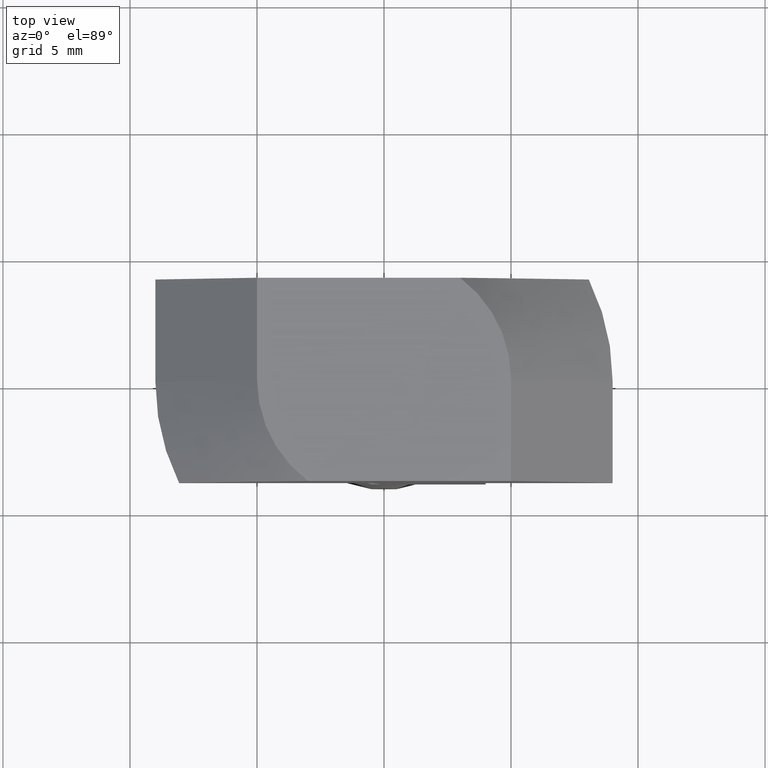
[diagram: clean part render]
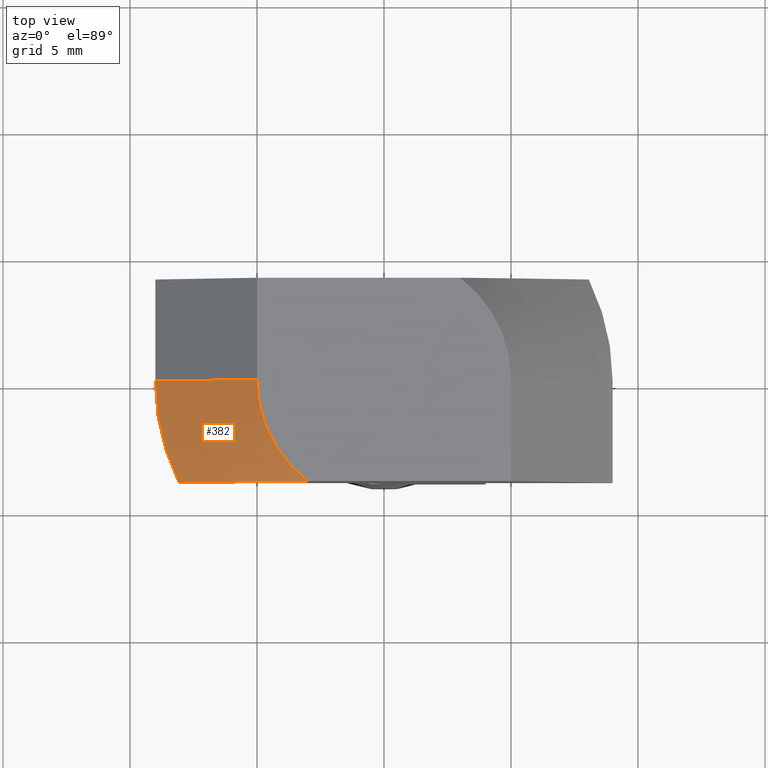
[diagram: same view with one face highlighted and labeled with its STEP entity id]
A machine part, top view. The second image highlights one B-rep face of the part: STEP entity #382.
In plain terms, the highlighted conical surface has half-angle 45 deg.
Its self-contained STEP definition (entity closure, byte-faithful):
#16=(
BOUNDED_CURVE()
B_SPLINE_CURVE(2,(#629,#630,#631),.UNSPECIFIED.,.F.,.F.)
B_SPLINE_CURVE_WITH_KNOTS((3,3),(0.,0.645810133031388),.UNSPECIFIED.)
CURVE()
GEOMETRIC_REPRESENTATION_ITEM()
RATIONAL_B_SPLINE_CURVE((1.,1.07257323111155,1.))
REPRESENTATION_ITEM('')
);
#40=LINE('',#634,#74);
#74=VECTOR('',#517,5.65685424949238);
#124=FACE_OUTER_BOUND('',#152,.T.);
#152=EDGE_LOOP('',(#317,#318,#319,#320));
#173=CIRCLE('',#420,9.);
#174=CIRCLE('',#422,5.);
#202=VERTEX_POINT('',#622);
#203=VERTEX_POINT('',#624);
#204=VERTEX_POINT('',#628);
#205=VERTEX_POINT('',#632);
#246=EDGE_CURVE('',#203,#202,#173,.T.);
#248=EDGE_CURVE('',#204,#202,#16,.T.);
#249=EDGE_CURVE('',#205,#204,#174,.T.);
#250=EDGE_CURVE('',#205,#203,#40,.T.);
#317=ORIENTED_EDGE('',*,*,#248,.F.);
#318=ORIENTED_EDGE('',*,*,#249,.F.);
#319=ORIENTED_EDGE('',*,*,#250,.T.);
#320=ORIENTED_EDGE('',*,*,#246,.T.);
#366=CONICAL_SURFACE('',#421,7.,45.);
#382=ADVANCED_FACE('',(#124),#366,.T.);
#420=AXIS2_PLACEMENT_3D('',#625,#510,#511);
#421=AXIS2_PLACEMENT_3D('',#627,#513,#514);
#422=AXIS2_PLACEMENT_3D('',#633,#515,#516);
#510=DIRECTION('center_axis',(0.,0.,1.));
#511=DIRECTION('ref_axis',(-1.,-1.2335811384724E-16,0.));
#513=DIRECTION('center_axis',(0.,0.,-1.));
#514=DIRECTION('ref_axis',(-1.,0.,0.));
#515=DIRECTION('center_axis',(2.04289535270664E-17,0.,1.));
#516=DIRECTION('ref_axis',(-1.,0.,0.));
#517=DIRECTION('',(-0.707106781186547,0.,-0.707106781186547));
#622=CARTESIAN_POINT('',(-8.06225774829855,-4.,-4.));
#624=CARTESIAN_POINT('',(-9.,0.,-4.));
#625=CARTESIAN_POINT('Origin',(1.11022302462516E-15,1.11022302462516E-15,
-4.));
#627=CARTESIAN_POINT('Origin',(0.,0.,-2.));
#628=CARTESIAN_POINT('',(-3.,-4.,0.));
#629=CARTESIAN_POINT('Ctrl Pts',(-3.,-4.,2.77555756156289E-16));
#630=CARTESIAN_POINT('Ctrl Pts',(-4.80794919582092,-4.,-1.08476951749255));
#631=CARTESIAN_POINT('Ctrl Pts',(-8.06225774829855,-4.,-4.));
#632=CARTESIAN_POINT('',(-5.,0.,0.));
#633=CARTESIAN_POINT('Origin',(0.,0.,2.77555756156289E-16));
#634=CARTESIAN_POINT('',(-7.,0.,-2.));